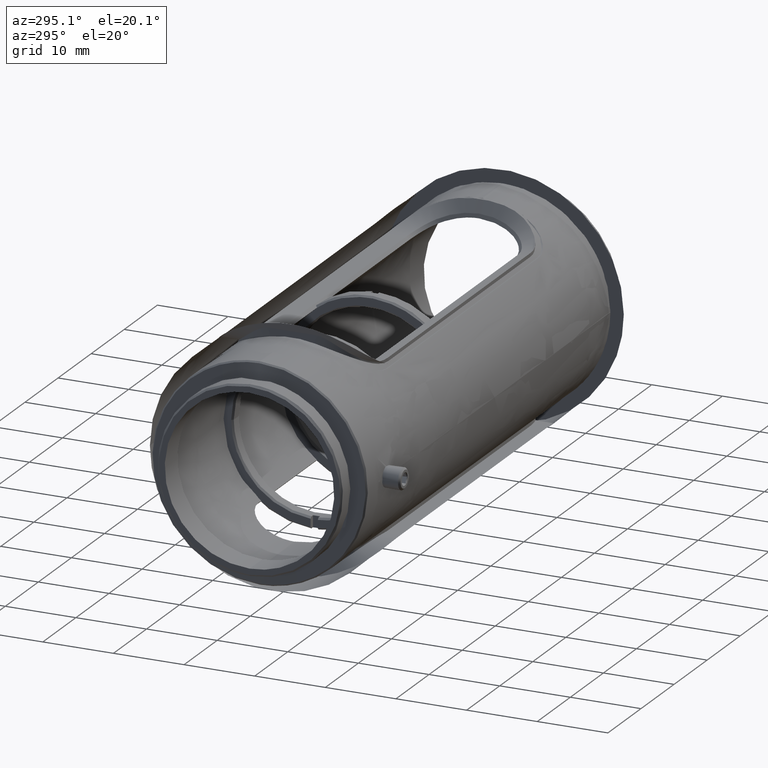
[diagram: clean part render]
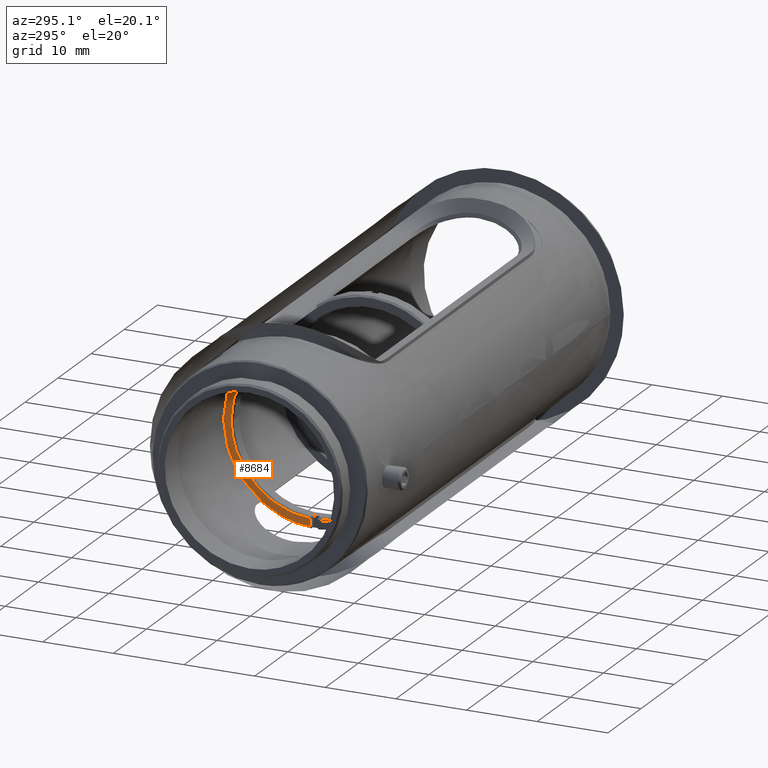
[diagram: same view with one face highlighted and labeled with its STEP entity id]
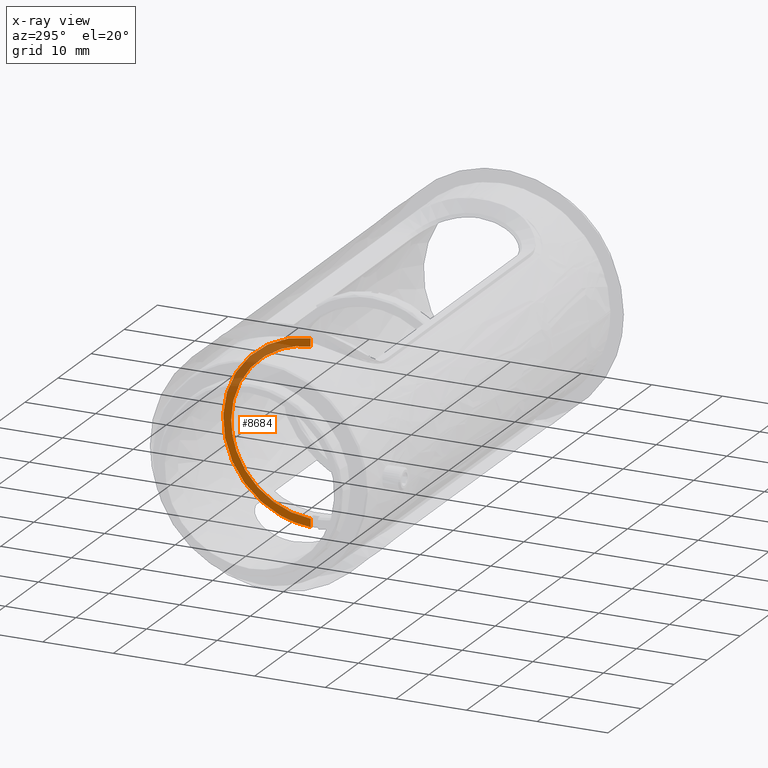
[diagram: x-ray of the same camera — body ghosted, the highlighted face saturated]
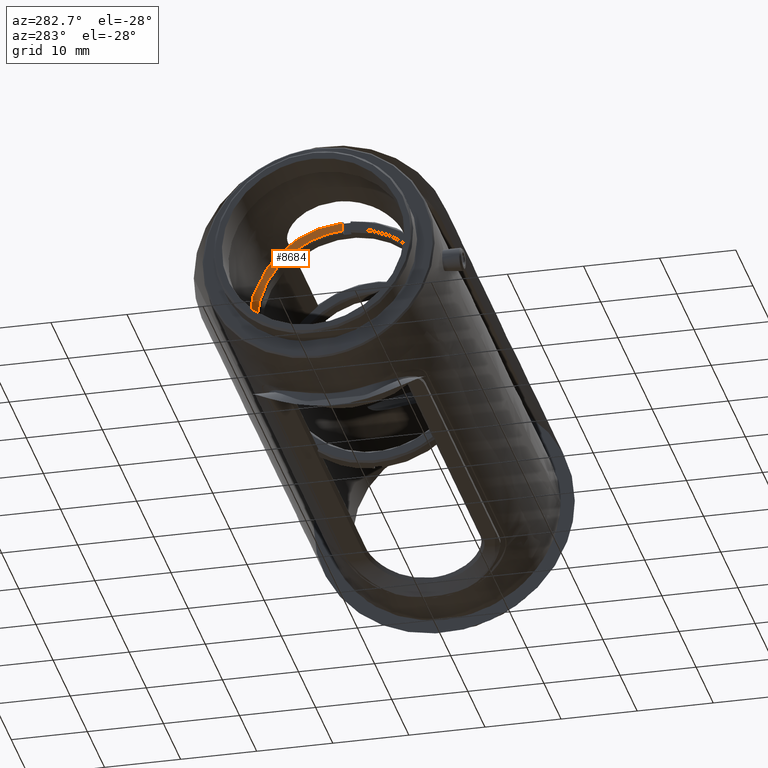
[diagram: same view with one face highlighted and labeled with its STEP entity id]
A machine part, auxiliary view. The second image highlights one B-rep face of the part: STEP entity #8684.
The next image is the same camera in x-ray: the body ghosted, the highlighted face saturated — about 29% of this face is hidden behind the body in this view.
A second angle (auxiliary view) of the same face is appended — the face is thin or edge-on in the first view.
In plain terms, the highlighted face is a freeform B-spline surface patch.
Its self-contained STEP definition (entity closure, byte-faithful):
#154 = CARTESIAN_POINT ( 'NONE',  ( -80.66838641804508825, 11.75450000000000017, 2.041534860785734824E-15 ) ) ;
#389 = CARTESIAN_POINT ( 'NONE',  ( -80.66838641804508825, 0.5000000000000000000, -11.74386096009311942 ) ) ;
#449 = CARTESIAN_POINT ( 'NONE',  ( -80.66838641804508825, 1.325194622840904612, -12.85278028430034425 ) ) ;
#624 = EDGE_LOOP ( 'NONE', ( #2716, #7992, #10942, #11795, #11143 ) ) ;
#1022 = CARTESIAN_POINT ( 'NONE',  ( -80.66838641804510246, 8.720737363983177559, 9.533992250322327777 ) ) ;
#1083 = CARTESIAN_POINT ( 'NONE',  ( -80.66838641804508825, 6.746726618700055411, -11.01960882704085520 ) ) ;
#1150 = CARTESIAN_POINT ( 'NONE',  ( -80.66838641804508825, 10.28332675389003548, 5.743146991463850881 ) ) ;
#1184 = CARTESIAN_POINT ( 'NONE',  ( -80.66838641804508825, 0.5000000000000000000, 12.88480229766832075 ) ) ;
#1191 = CARTESIAN_POINT ( 'NONE',  ( -80.66838641804508825, 0.5000000000000000000, 11.74386096009311942 ) ) ;
#1215 = CARTESIAN_POINT ( 'NONE',  ( -80.66838641804510246, 10.62723248622941341, 5.078793214111202659 ) ) ;
#1451 = CARTESIAN_POINT ( 'NONE',  ( -80.66838641804508825, 11.75450000000000017, -0.7509616276652684164 ) ) ;
#1518 = CARTESIAN_POINT ( 'NONE',  ( -80.66838641804508825, 11.75450000000000017, 2.041534860785734824E-15 ) ) ;
#1595 = CARTESIAN_POINT ( 'NONE',  ( -80.66838641804508825, 0.5000000000000000000, -11.74386096009311942 ) ) ;
#1651 = CARTESIAN_POINT ( 'NONE',  ( -80.66838641804505983, 6.031834495822884890, -11.42651482364133386 ) ) ;
#1984 = VERTEX_POINT ( 'NONE', #12641 ) ;
#2018 = CARTESIAN_POINT ( 'NONE',  ( -80.66838641804513088, 12.50167438547426713, 3.264415102299378368 ) ) ;
#2025 = CARTESIAN_POINT ( 'NONE',  ( -80.66838641804511667, 6.175410581486173278, 10.02978140230155368 ) ) ;
#2212 = CARTESIAN_POINT ( 'NONE',  ( -80.66838641804510246, 10.37595174066051484, 7.699863237465508270 ) ) ;
#2328 = CARTESIAN_POINT ( 'NONE',  ( -80.66838641804508825, 10.28338623829185217, -5.743185379418834557 ) ) ;
#2448 = CARTESIAN_POINT ( 'NONE',  ( -80.66838641804507404, 6.031863552644066928, 11.42657957791877621 ) ) ;
#2490 = EDGE_CURVE ( 'NONE', #10004, #12168, #9451, .T. ) ;
#2519 = CARTESIAN_POINT ( 'NONE',  ( -80.66838641804507404, 10.62716679504496753, -5.078766819094458818 ) ) ;
#2597 = EDGE_CURVE ( 'NONE', #7757, #10004, #9289, .T. ) ;
#2598 = CARTESIAN_POINT ( 'NONE',  ( -80.66838641804508825, 12.96889138675619968, 13.03941992524040039 ) ) ;
#2716 = ORIENTED_EDGE ( 'NONE', *, *, #5115, .T. ) ;
#3209 = CARTESIAN_POINT ( 'NONE',  ( -80.66838641804508825, 1.324821835018101801, 12.85279475048360709 ) ) ;
#3214 = CARTESIAN_POINT ( 'NONE',  ( -80.66838641804508825, 11.68311981840160740, 1.495077850423145449 ) ) ;
#3438 = CARTESIAN_POINT ( 'NONE',  ( -80.66838641804508825, 0.5000000000000000000, 12.88480229766832075 ) ) ;
#3453 = FACE_OUTER_BOUND ( 'NONE', #624, .T. ) ;
#3643 = CARTESIAN_POINT ( 'NONE',  ( -80.66838641804510246, 2.139615418059820584, -12.74254498983941630 ) ) ;
#4011 = CARTESIAN_POINT ( 'NONE',  ( -80.66838641804511667, 11.65187875268946982, -5.584247514310390237 ) ) ;
#4144 = CARTESIAN_POINT ( 'NONE',  ( -80.66838641804508825, 12.81582257679880854, -1.644068149679603685 ) ) ;
#4171 = VERTEX_POINT ( 'NONE', #8832 ) ;
#4275 = CARTESIAN_POINT ( 'NONE',  ( -80.66838641804508825, 11.18672054862638809, 3.686167367266426798 ) ) ;
#4441 = CARTESIAN_POINT ( 'NONE',  ( -80.66838641804511667, 12.26868962317046119, 4.053313915689643387 ) ) ;
#4511 = CARTESIAN_POINT ( 'NONE',  ( -80.66838641804510246, 1.249909218116791010, -11.71193324821604520 ) ) ;
#4579 = CARTESIAN_POINT ( 'NONE',  ( -80.66838641804505983, 3.450759508853615376, -11.26163707687626747 ) ) ;
#4642 = CARTESIAN_POINT ( 'NONE',  ( -80.66838641804508825, 0.5000000000000000000, -12.88480229766832075 ) ) ;
#4655 = CARTESIAN_POINT ( 'NONE',  ( -80.66838641804508825, 0.5000000000000000000, -13.03941992524040039 ) ) ;
#5080 = CARTESIAN_POINT ( 'NONE',  ( -80.66838641804508825, 10.37601132114859759, -7.699901806621276101 ) ) ;
#5115 = EDGE_CURVE ( 'NONE', #12168, #4171, #12388, .T. ) ;
#5284 = CARTESIAN_POINT ( 'NONE',  ( -80.66838641804508825, 9.005805648585006651, 7.591179823503279245 ) ) ;
#5393 = CARTESIAN_POINT ( 'NONE',  ( -80.66838641804507404, 5.526245913940834420, -10.40157761720441343 ) ) ;
#5591 = CARTESIAN_POINT ( 'NONE',  ( -80.66838641804508825, 0.5000000000000000000, 12.88480229766832075 ) ) ;
#5732 = CARTESIAN_POINT ( 'NONE',  ( -80.66838641804508825, 0.5000000000000000000, -12.88480229766832075 ) ) ;
#6150 = CARTESIAN_POINT ( 'NONE',  ( -80.66838641804513088, 12.89446451259935778, 0.8252595549861737600 ) ) ;
#6214 = CARTESIAN_POINT ( 'NONE',  ( -80.66838641804510246, 8.096453383257761871, 10.06963462004139664 ) ) ;
#6280 = CARTESIAN_POINT ( 'NONE',  ( -80.66838641804510246, 11.65181292035414629, 5.584220990354975100 ) ) ;
#6285 = CARTESIAN_POINT ( 'NONE',  ( -80.66838641804508825, 11.39822874376459083, 2.968601075282345292 ) ) ;
#6394 = CARTESIAN_POINT ( 'NONE',  ( -80.66838641804508825, 11.68322476036103552, -1.494908115282845174 ) ) ;
#6591 = CARTESIAN_POINT ( 'NONE',  ( -80.66838641804508825, 11.18678623981083042, -3.686193762283167530 ) ) ;
#6881 = B_SPLINE_SURFACE_WITH_KNOTS ( 'NONE', 1, 1, ( 
 ( #11746, #2598 ),
 ( #4655, #11677 ) ),
 .UNSPECIFIED., .F., .F., .F.,
 ( 2, 2 ),
 ( 2, 2 ),
 ( 0.000000000000000000, 1.000000000000000000 ),
 ( 0.000000000000000000, 1.000000000000000000 ),
 .UNSPECIFIED. ) ;
#7086 = CARTESIAN_POINT ( 'NONE',  ( -80.66838641804505983, 1.250281929886336130, 11.71191737984994674 ) ) ;
#7219 = CARTESIAN_POINT ( 'NONE',  ( -80.66838641804510246, 7.967439194402443192, 8.674798182752557096 ) ) ;
#7277 = CARTESIAN_POINT ( 'NONE',  ( -80.66838641804508825, 4.525969878122903189, 12.10222562438961447 ) ) ;
#7283 = CARTESIAN_POINT ( 'NONE',  ( -80.66838641804508825, 0.5000000000000000000, 11.74386096009311942 ) ) ;
#7515 = CARTESIAN_POINT ( 'NONE',  ( -80.66838641804508825, 3.746743903427803168, 12.36575953599633593 ) ) ;
#7757 = VERTEX_POINT ( 'NONE', #154 ) ;
#7955 = B_SPLINE_CURVE_WITH_KNOTS ( 'NONE', 1,
 ( #5732, #1595 ),
 .UNSPECIFIED., .F., .F.,
 ( 2, 2 ),
 ( 0.000000000000000000, 1.000000000000000000 ),
 .UNSPECIFIED. ) ;
#7992 = ORIENTED_EDGE ( 'NONE', *, *, #8714, .T. ) ;
#8089 = CARTESIAN_POINT ( 'NONE',  ( -80.66838641804508825, 11.27287418533940055, -6.314315164974913408 ) ) ;
#8153 = CARTESIAN_POINT ( 'NONE',  ( -80.66838641804507404, 8.720788514508329925, -9.534041454369077684 ) ) ;
#8158 = CARTESIAN_POINT ( 'NONE',  ( -80.66838641804508825, 4.158708591412628941, 11.01986178131507899 ) ) ;
#8223 = CARTESIAN_POINT ( 'NONE',  ( -80.66838641804508825, 11.75450000000000017, 2.041534860785734824E-15 ) ) ;
#8523 = CARTESIAN_POINT ( 'NONE',  ( -80.66838641804508825, 12.50174406273979066, -3.264428611297290228 ) ) ;
#8529 = CARTESIAN_POINT ( 'NONE',  ( -80.66838641804507404, 7.967388080835640984, -8.674749198784708071 ) ) ;
#8684 = ADVANCED_FACE ( 'NONE', ( #3453 ), #6881, .T. ) ;
#8714 = EDGE_CURVE ( 'NONE', #4171, #1984, #7955, .T. ) ;
#8832 = CARTESIAN_POINT ( 'NONE',  ( -80.66838641804508825, 0.5000000000000000000, -12.88480229766832075 ) ) ;
#9163 = CARTESIAN_POINT ( 'NONE',  ( -80.66838641804508825, 9.864979172084552772, -8.344486463219629613 ) ) ;
#9289 = B_SPLINE_CURVE_WITH_KNOTS ( 'NONE', 3,
 ( #8223, #13173, #3214, #6285, #4275, #1215, #1150, #11111, #5284, #7219, #11303, #2025, #9364, #8158, #11240, #11370, #7086, #7283 ),
 .UNSPECIFIED., .F., .F.,
 ( 4, 2, 2, 2, 2, 2, 2, 2, 4 ),
 ( 0.000000000000000000, 0.1250000000000000278, 0.2500000000000000555, 0.3750000000000001110, 0.5000000000000001110, 0.6250000000000000000, 0.7499999999999998890, 0.8750000000000000000, 1.000000000000000000 ),
 .UNSPECIFIED. ) ;
#9364 = CARTESIAN_POINT ( 'NONE',  ( -80.66838641804507404, 5.526216748314619842, 10.40151310835774190 ) ) ;
#9445 = B_SPLINE_CURVE_WITH_KNOTS ( 'NONE', 3,
 ( #389, #4511, #11669, #4579, #11478, #5393, #9474, #12544, #8529, #12607, #10664, #2328, #2519, #6591, #10597, #6394, #1451, #1518 ),
 .UNSPECIFIED., .F., .F.,
 ( 4, 2, 2, 2, 2, 2, 2, 2, 4 ),
 ( 0.000000000000000000, 0.1249999999999999445, 0.2499999999999998890, 0.3749999999999998335, 0.4999999999999997780, 0.6249999999999997780, 0.7499999999999998890, 0.8749999999999998890, 1.000000000000000000 ),
 .UNSPECIFIED. ) ;
#9451 = B_SPLINE_CURVE_WITH_KNOTS ( 'NONE', 1,
 ( #11340, #1184 ),
 .UNSPECIFIED., .F., .F.,
 ( 2, 2 ),
 ( 0.000000000000000000, 1.000000000000000000 ),
 .UNSPECIFIED. ) ;
#9474 = CARTESIAN_POINT ( 'NONE',  ( -80.66838641804507404, 6.175369698233494908, -10.02972360452762501 ) ) ;
#10004 = VERTEX_POINT ( 'NONE', #1191 ) ;
#10103 = CARTESIAN_POINT ( 'NONE',  ( -80.66838641804508825, 12.26862379083513410, -4.053287391734203382 ) ) ;
#10169 = CARTESIAN_POINT ( 'NONE',  ( -80.66838641804511667, 12.81589225406434274, 1.644081658677548852 ) ) ;
#10234 = CARTESIAN_POINT ( 'NONE',  ( -80.66838641804511667, 2.139780867885693993, 12.74243329257487467 ) ) ;
#10597 = CARTESIAN_POINT ( 'NONE',  ( -80.66838641804508825, 11.39812380180516627, -2.968770810422619810 ) ) ;
#10664 = CARTESIAN_POINT ( 'NONE',  ( -80.66838641804507404, 9.469537479624534626, -7.004170644250373279 ) ) ;
#10942 = ORIENTED_EDGE ( 'NONE', *, *, #12128, .T. ) ;
#11111 = CARTESIAN_POINT ( 'NONE',  ( -80.66838641804507404, 9.469596964026345987, 7.004209032205357843 ) ) ;
#11143 = ORIENTED_EDGE ( 'NONE', *, *, #2490, .T. ) ;
#11236 = CARTESIAN_POINT ( 'NONE',  ( -80.66838641804510246, 9.865030322609685598, 8.344535667266383072 ) ) ;
#11240 = CARTESIAN_POINT ( 'NONE',  ( -80.66838641804505983, 3.450924626118175187, 11.26152500993256922 ) ) ;
#11303 = CARTESIAN_POINT ( 'NONE',  ( -80.66838641804508825, 7.400635920681946978, 9.163030855701927990 ) ) ;
#11340 = CARTESIAN_POINT ( 'NONE',  ( -80.66838641804508825, 0.5000000000000000000, 11.74386096009311942 ) ) ;
#11364 = CARTESIAN_POINT ( 'NONE',  ( -80.66838641804508825, 6.746685768232380198, 11.01955078692720313 ) ) ;
#11370 = CARTESIAN_POINT ( 'NONE',  ( -80.66838641804507404, 1.990523241087242212, 11.60906147376921638 ) ) ;
#11478 = CARTESIAN_POINT ( 'NONE',  ( -80.66838641804507404, 4.158679425786425021, -11.01979727246838969 ) ) ;
#11595 = CARTESIAN_POINT ( 'NONE',  ( -80.66838641804508825, 12.89453548740065258, -0.8252595549861743152 ) ) ;
#11669 = CARTESIAN_POINT ( 'NONE',  ( -80.66838641804508825, 1.990688358351791809, -11.60894940682552701 ) ) ;
#11677 = CARTESIAN_POINT ( 'NONE',  ( -80.66838641804508825, 0.4999999999999890643, 13.03941992524040039 ) ) ;
#11733 = CARTESIAN_POINT ( 'NONE',  ( -80.66838641804507404, 4.525998934944091445, -12.10229037866707458 ) ) ;
#11746 = CARTESIAN_POINT ( 'NONE',  ( -80.66838641804508825, 12.96889138675619968, -13.03941992524040039 ) ) ;
#11795 = ORIENTED_EDGE ( 'NONE', *, *, #2597, .T. ) ;
#12128 = EDGE_CURVE ( 'NONE', #1984, #7757, #9445, .T. ) ;
#12168 = VERTEX_POINT ( 'NONE', #5591 ) ;
#12230 = CARTESIAN_POINT ( 'NONE',  ( -80.66838641804508825, 8.096412532790090211, -10.06957657992774813 ) ) ;
#12388 = B_SPLINE_CURVE_WITH_KNOTS ( 'NONE', 3,
 ( #3438, #3209, #10234, #7515, #7277, #2448, #11364, #6214, #1022, #11236, #2212, #13168, #6280, #4441, #2018, #10169, #6150, #11595, #4144, #8523, #10103, #4011, #8089, #5080, #9163, #8153, #12230, #1083, #1651, #11733, #12803, #3643, #449, #4642 ),
 .UNSPECIFIED., .F., .F.,
 ( 4, 2, 2, 2, 2, 2, 2, 2, 2, 2, 2, 2, 2, 2, 2, 2, 4 ),
 ( 0.000000000000000000, 0.06249999999999995837, 0.1249999999999999167, 0.1874999999999998890, 0.2499999999999998335, 0.3124999999999997780, 0.3749999999999997780, 0.4374999999999997224, 0.4999999999999996669, 0.5624999999999996669, 0.6249999999999995559, 0.6874999999999995559, 0.7499999999999995559, 0.8124999999999995559, 0.8749999999999997780, 0.9374999999999998890, 1.000000000000000000 ),
 .UNSPECIFIED. ) ;
#12544 = CARTESIAN_POINT ( 'NONE',  ( -80.66838641804505983, 7.400676803934629788, -9.163088653475833567 ) ) ;
#12607 = CARTESIAN_POINT ( 'NONE',  ( -80.66838641804508825, 9.005856762151799089, -7.591228807471176232 ) ) ;
#12641 = CARTESIAN_POINT ( 'NONE',  ( -80.66838641804508825, 0.5000000000000000000, -11.74386096009311942 ) ) ;
#12803 = CARTESIAN_POINT ( 'NONE',  ( -80.66838641804510246, 3.746909353253694341, -12.36564783873179074 ) ) ;
#13168 = CARTESIAN_POINT ( 'NONE',  ( -80.66838641804507404, 11.27293376582748152, 6.314353734130684792 ) ) ;
#13173 = CARTESIAN_POINT ( 'NONE',  ( -80.66838641804507404, 11.75450000000000195, 0.7505885784635888403 ) ) ;